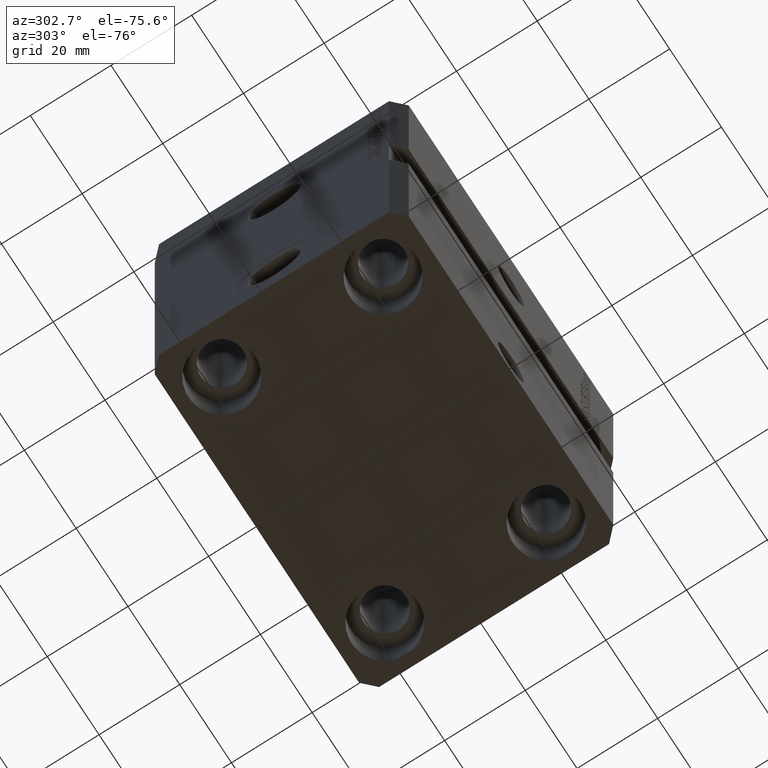
[diagram: clean part render]
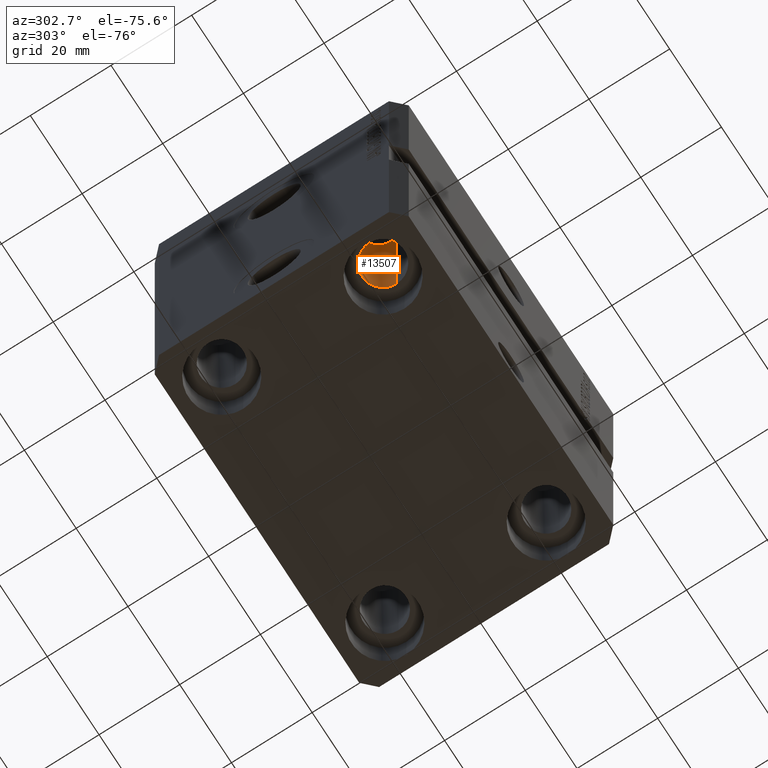
[diagram: same view with one face highlighted and labeled with its STEP entity id]
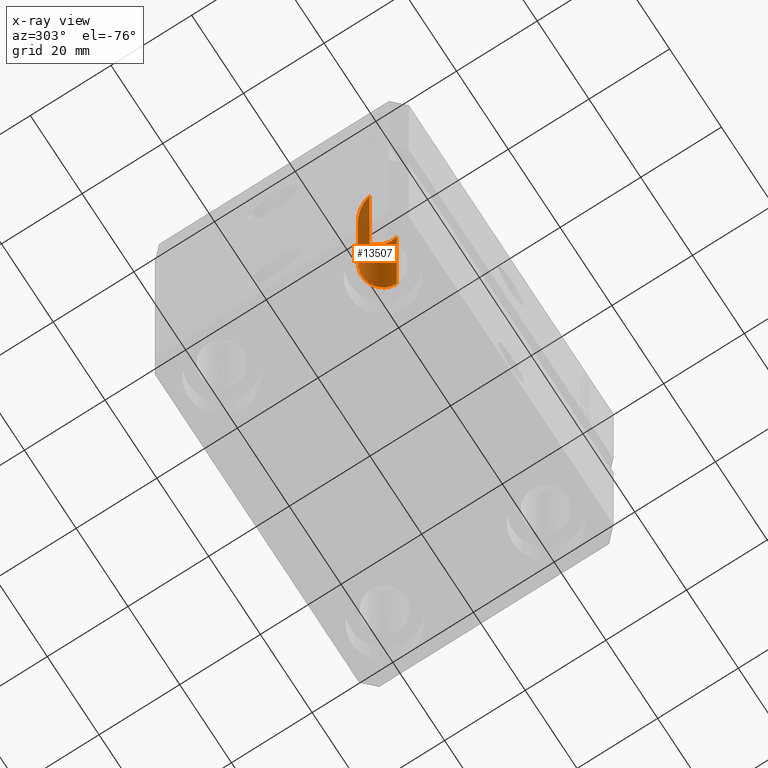
[diagram: x-ray of the same camera — body ghosted, the highlighted face saturated]
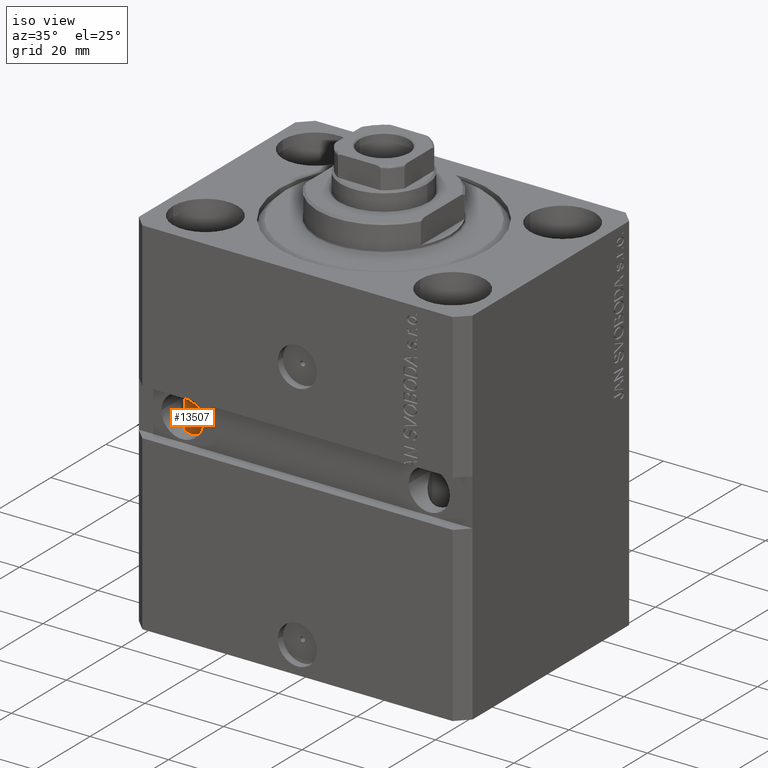
[diagram: same view with one face highlighted and labeled with its STEP entity id]
A machine part, auxiliary view. The second image highlights one B-rep face of the part: STEP entity #13507.
The next image is the same camera in x-ray: the body ghosted, the highlighted face saturated — about 21% of this face is hidden behind the body in this view.
A second angle (iso view) of the same face is appended — the face is thin or edge-on in the first view.
In plain terms, the highlighted cylindrical surface (edge-blend (fillet) strip) has radius 5.25 mm, axis along (0, 0, 1).
Its self-contained STEP definition (entity closure, byte-faithful):
#2317 = ORIENTED_EDGE ( 'NONE', *, *, #31953, .T. ) ;
#2378 = CARTESIAN_POINT ( 'NONE',  ( -36.75000000000000000, -20.00000000000000000, -82.00000000000000000 ) ) ;
#4131 = LINE ( 'NONE', #22053, #44126 ) ;
#4996 = AXIS2_PLACEMENT_3D ( 'NONE', #19691, #13327, #13106 ) ;
#5670 = EDGE_CURVE ( 'NONE', #37024, #31749, #9332, .T. ) ;
#6339 = EDGE_CURVE ( 'NONE', #37024, #36412, #4131, .T. ) ;
#9332 = CIRCLE ( 'NONE', #4996, 5.249999999999997335 ) ;
#9466 = AXIS2_PLACEMENT_3D ( 'NONE', #9491, #19928, #41216 ) ;
#9491 = CARTESIAN_POINT ( 'NONE',  ( -31.50000000000000000, -20.00000000000000000, -93.00000000000000000 ) ) ;
#10167 = FACE_OUTER_BOUND ( 'NONE', #28184, .T. ) ;
#11180 = DIRECTION ( 'NONE',  ( -0.000000000000000000, -0.000000000000000000, 1.000000000000000000 ) ) ;
#12416 = ORIENTED_EDGE ( 'NONE', *, *, #6339, .F. ) ;
#13106 = DIRECTION ( 'NONE',  ( -1.000000000000000000, 0.000000000000000000, 0.000000000000000000 ) ) ;
#13327 = DIRECTION ( 'NONE',  ( 0.000000000000000000, 0.000000000000000000, -1.000000000000000000 ) ) ;
#13507 = ADVANCED_FACE ( 'NONE', ( #10167 ), #20819, .F. ) ;
#15450 = DIRECTION ( 'NONE',  ( -0.000000000000000000, -0.000000000000000000, 1.000000000000000000 ) ) ;
#17531 = CARTESIAN_POINT ( 'NONE',  ( -26.25000000000000000, -20.00000000000000000, -93.00000000000000000 ) ) ;
#19691 = CARTESIAN_POINT ( 'NONE',  ( -31.50000000000000000, -20.00000000000000000, -82.00000000000000000 ) ) ;
#19928 = DIRECTION ( 'NONE',  ( -0.000000000000000000, -0.000000000000000000, 1.000000000000000000 ) ) ;
#20682 = CARTESIAN_POINT ( 'NONE',  ( -26.24999999999999645, -9.500000000000012434, -53.49999999999999289 ) ) ;
#20819 = CYLINDRICAL_SURFACE ( 'NONE', #9466, 5.250000000000000888 ) ;
#22053 = CARTESIAN_POINT ( 'NONE',  ( -36.75000000000000000, -20.00000000000000000, -93.00000000000000000 ) ) ;
#23805 = ORIENTED_EDGE ( 'NONE', *, *, #42788, .T. ) ;
#24709 = VERTEX_POINT ( 'NONE', #29026 ) ;
#25276 = CARTESIAN_POINT ( 'NONE',  ( -26.25000000000000000, -20.00000000000000000, -82.00000000000000000 ) ) ;
#28184 = EDGE_LOOP ( 'NONE', ( #12416, #41453, #23805, #2317 ) ) ;
#29026 = CARTESIAN_POINT ( 'NONE',  ( -26.24999999999999645, -20.00000000000000355, -43.00000000000000000 ) ) ;
#29748 =( BOUNDED_CURVE ( )  B_SPLINE_CURVE ( 3, ( #37913, #20682, #38805, #36065 ),
 .UNSPECIFIED., .F., .F. ) 
 B_SPLINE_CURVE_WITH_KNOTS ( ( 4, 4 ),
 ( 1.570796326794896558, 4.712388980384689674 ),
 .UNSPECIFIED. ) 
 CURVE ( )  GEOMETRIC_REPRESENTATION_ITEM ( )  RATIONAL_B_SPLINE_CURVE ( ( 1.000000000000000000, 0.3333333333333333703, 0.3333333333333333703, 1.000000000000000000 ) ) 
 REPRESENTATION_ITEM ( '' )  );
#31749 = VERTEX_POINT ( 'NONE', #25276 ) ;
#31953 = EDGE_CURVE ( 'NONE', #24709, #36412, #29748, .T. ) ;
#36065 = CARTESIAN_POINT ( 'NONE',  ( -36.74999999999999289, -20.00000000000000355, -43.00000000000000000 ) ) ;
#36412 = VERTEX_POINT ( 'NONE', #40999 ) ;
#37024 = VERTEX_POINT ( 'NONE', #2378 ) ;
#37913 = CARTESIAN_POINT ( 'NONE',  ( -26.24999999999999645, -20.00000000000000355, -43.00000000000000000 ) ) ;
#38805 = CARTESIAN_POINT ( 'NONE',  ( -36.74999999999999289, -9.500000000000012434, -53.49999999999999289 ) ) ;
#40154 = VECTOR ( 'NONE', #11180, 1000.000000000000000 ) ;
#40999 = CARTESIAN_POINT ( 'NONE',  ( -36.74999999999999289, -20.00000000000000355, -43.00000000000000000 ) ) ;
#41216 = DIRECTION ( 'NONE',  ( 1.000000000000000000, 0.000000000000000000, 0.000000000000000000 ) ) ;
#41453 = ORIENTED_EDGE ( 'NONE', *, *, #5670, .T. ) ;
#42008 = LINE ( 'NONE', #17531, #40154 ) ;
#42788 = EDGE_CURVE ( 'NONE', #31749, #24709, #42008, .T. ) ;
#44126 = VECTOR ( 'NONE', #15450, 1000.000000000000000 ) ;